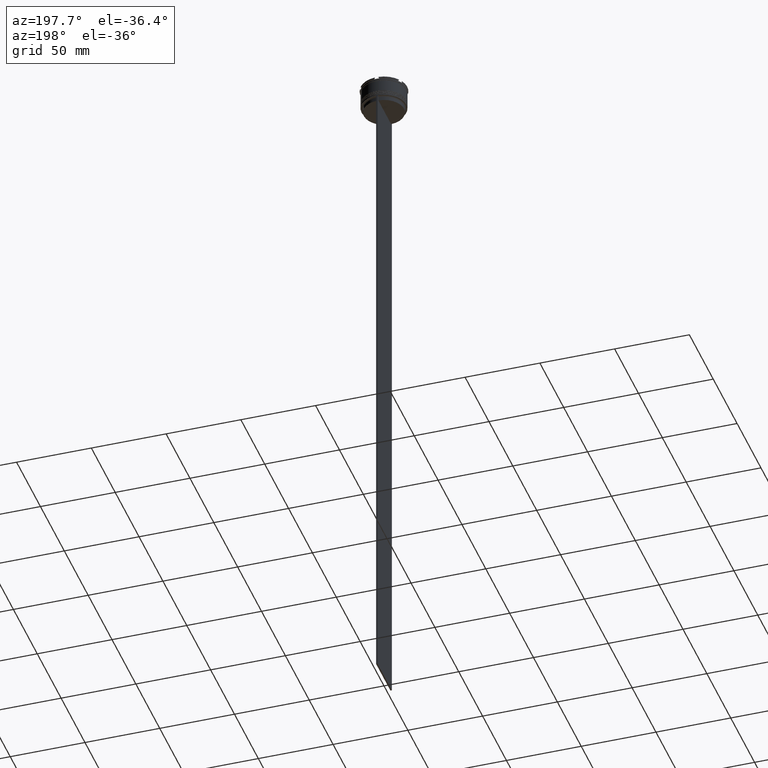
[diagram: clean part render]
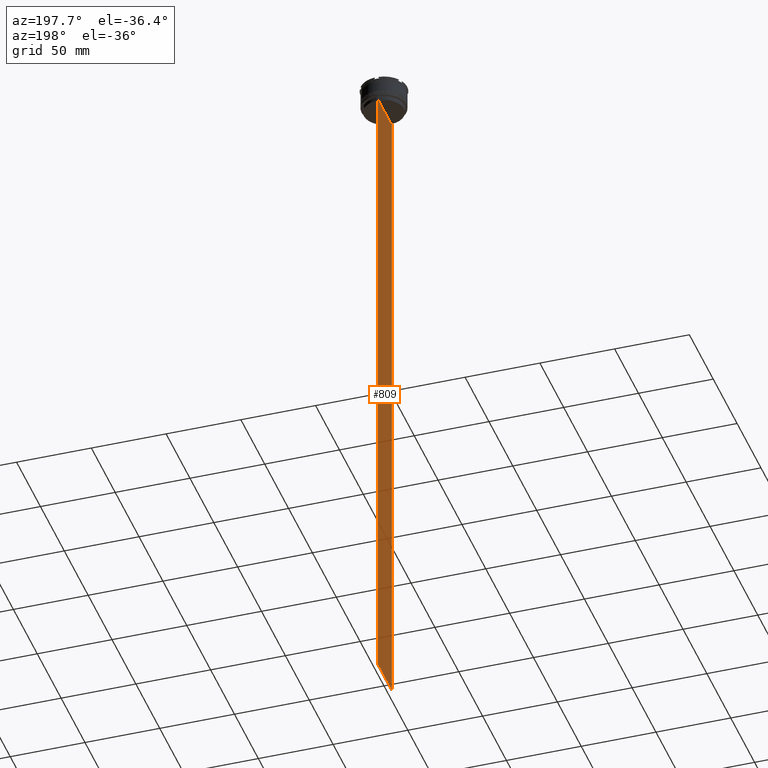
[diagram: same view with one face highlighted and labeled with its STEP entity id]
A machine part, auxiliary view. The second image highlights one B-rep face of the part: STEP entity #809.
In plain terms, the highlighted planar face has unit normal (-1, 0, 0).
Its self-contained STEP definition (entity closure, byte-faithful):
#12 = DIRECTION ( 'NONE',  ( -1.000000000000000000, 0.000000000000000000, 0.000000000000000000 ) ) ;
#69 = LINE ( 'NONE', #2297, #1254 ) ;
#139 = VERTEX_POINT ( 'NONE', #1400 ) ;
#181 = EDGE_CURVE ( 'NONE', #1824, #2716, #1738, .T. ) ;
#210 = VERTEX_POINT ( 'NONE', #2868 ) ;
#221 = VECTOR ( 'NONE', #2240, 1000.000000000000000 ) ;
#225 = VECTOR ( 'NONE', #2636, 1000.000000000000000 ) ;
#236 = EDGE_CURVE ( 'NONE', #1792, #1236, #2553, .T. ) ;
#252 = EDGE_CURVE ( 'NONE', #328, #139, #819, .T. ) ;
#306 = DIRECTION ( 'NONE',  ( 0.000000000000000000, 0.000000000000000000, -1.000000000000000000 ) ) ;
#328 = VERTEX_POINT ( 'NONE', #708 ) ;
#385 = CARTESIAN_POINT ( 'NONE',  ( -0.4999999999999998890, -15.00000000000000355, -464.0000000000000000 ) ) ;
#397 = EDGE_CURVE ( 'NONE', #1532, #210, #2225, .T. ) ;
#446 = DIRECTION ( 'NONE',  ( 0.000000000000000000, -1.000000000000000000, 0.000000000000000000 ) ) ;
#518 = LINE ( 'NONE', #903, #1212 ) ;
#525 = EDGE_CURVE ( 'NONE', #1260, #622, #1537, .T. ) ;
#576 = LINE ( 'NONE', #1899, #789 ) ;
#595 = DIRECTION ( 'NONE',  ( 0.000000000000000000, -1.000000000000000000, 0.000000000000000000 ) ) ;
#618 = DIRECTION ( 'NONE',  ( 0.000000000000000000, -1.000000000000000000, 0.000000000000000000 ) ) ;
#622 = VERTEX_POINT ( 'NONE', #1002 ) ;
#632 = CARTESIAN_POINT ( 'NONE',  ( -0.4999999999999998890, -13.72422766745777345, -14.16666868242426958 ) ) ;
#663 = EDGE_CURVE ( 'NONE', #2762, #782, #2118, .T. ) ;
#664 = CARTESIAN_POINT ( 'NONE',  ( -0.4999999999999998890, 13.72422766736833566, -14.16666868251365052 ) ) ;
#672 = ORIENTED_EDGE ( 'NONE', *, *, #1446, .F. ) ;
#708 = CARTESIAN_POINT ( 'NONE',  ( -0.4999999999999998890, -13.39066839257847263, -14.49999999999999822 ) ) ;
#736 = VECTOR ( 'NONE', #595, 1000.000000000000000 ) ;
#782 = VERTEX_POINT ( 'NONE', #2402 ) ;
#789 = VECTOR ( 'NONE', #306, 1000.000000000000000 ) ;
#809 = ADVANCED_FACE ( 'NONE', ( #1757 ), #2214, .T. ) ;
#819 = B_SPLINE_CURVE_WITH_KNOTS ( 'NONE', 3,
 ( #1327, #1553, #632, #2608 ),
 .UNSPECIFIED., .F., .F.,
 ( 4, 4 ),
 ( 0.06160226316123729867, 0.06231007364084071437 ),
 .UNSPECIFIED. ) ;
#850 = CARTESIAN_POINT ( 'NONE',  ( -0.4999999999999998890, 13.55744911232272543, -14.33333542444994002 ) ) ;
#896 = ORIENTED_EDGE ( 'NONE', *, *, #252, .F. ) ;
#903 = CARTESIAN_POINT ( 'NONE',  ( -0.4999999999999998890, 13.39066839257847263, 0.000000000000000000 ) ) ;
#906 = DIRECTION ( 'NONE',  ( 0.000000000000000000, 0.000000000000000000, 1.000000000000000000 ) ) ;
#935 = VECTOR ( 'NONE', #618, 1000.000000000000000 ) ;
#946 = EDGE_CURVE ( 'NONE', #2762, #622, #2005, .T. ) ;
#995 = CARTESIAN_POINT ( 'NONE',  ( -0.4999999999999998890, -15.00000000000000355, -14.00000000000000178 ) ) ;
#1002 = CARTESIAN_POINT ( 'NONE',  ( -0.4999999999999998890, 14.99999999999999645, -464.0000000000000000 ) ) ;
#1036 = ORIENTED_EDGE ( 'NONE', *, *, #236, .F. ) ;
#1153 = EDGE_LOOP ( 'NONE', ( #1036, #1364, #2760, #1334, #2210, #1583, #1856, #2722, #896, #672, #1587, #1674 ) ) ;
#1212 = VECTOR ( 'NONE', #2212, 1000.000000000000000 ) ;
#1222 = DIRECTION ( 'NONE',  ( 0.000000000000000000, 1.000000000000000000, 0.000000000000000000 ) ) ;
#1236 = VERTEX_POINT ( 'NONE', #2848 ) ;
#1254 = VECTOR ( 'NONE', #2532, 1000.000000000000000 ) ;
#1260 = VERTEX_POINT ( 'NONE', #385 ) ;
#1327 = CARTESIAN_POINT ( 'NONE',  ( -0.4999999999999998890, -13.39066839257847263, -14.49999999999999822 ) ) ;
#1334 = ORIENTED_EDGE ( 'NONE', *, *, #946, .T. ) ;
#1364 = ORIENTED_EDGE ( 'NONE', *, *, #2616, .F. ) ;
#1400 = CARTESIAN_POINT ( 'NONE',  ( -0.4999999999999998890, -13.89100428334828230, -14.00000000000000178 ) ) ;
#1430 = VECTOR ( 'NONE', #1993, 1000.000000000000000 ) ;
#1446 = EDGE_CURVE ( 'NONE', #210, #328, #69, .T. ) ;
#1449 = CARTESIAN_POINT ( 'NONE',  ( -0.4999999999999998890, -15.00000000000000355, -464.0000000000000000 ) ) ;
#1506 = EDGE_CURVE ( 'NONE', #2716, #1260, #576, .T. ) ;
#1532 = VERTEX_POINT ( 'NONE', #1938 ) ;
#1537 = LINE ( 'NONE', #1449, #2269 ) ;
#1542 = CARTESIAN_POINT ( 'NONE',  ( -0.4999999999999998890, 13.39066839257847263, -14.49999999999999822 ) ) ;
#1553 = CARTESIAN_POINT ( 'NONE',  ( -0.4999999999999998890, -13.55744911241550277, -14.33333542435722485 ) ) ;
#1583 = ORIENTED_EDGE ( 'NONE', *, *, #1506, .F. ) ;
#1587 = ORIENTED_EDGE ( 'NONE', *, *, #397, .F. ) ;
#1674 = ORIENTED_EDGE ( 'NONE', *, *, #2241, .F. ) ;
#1738 = LINE ( 'NONE', #1759, #1430 ) ;
#1757 = FACE_OUTER_BOUND ( 'NONE', #1153, .T. ) ;
#1759 = CARTESIAN_POINT ( 'NONE',  ( -0.4999999999999998890, -15.00000000000000355, -14.00000000000000178 ) ) ;
#1792 = VERTEX_POINT ( 'NONE', #1834 ) ;
#1824 = VERTEX_POINT ( 'NONE', #2294 ) ;
#1834 = CARTESIAN_POINT ( 'NONE',  ( -0.4999999999999998890, 13.89100428334828230, -14.00000000000000178 ) ) ;
#1856 = ORIENTED_EDGE ( 'NONE', *, *, #181, .F. ) ;
#1899 = CARTESIAN_POINT ( 'NONE',  ( -0.4999999999999998890, -15.00000000000000355, 16.01666203960726165 ) ) ;
#1917 = LINE ( 'NONE', #2818, #935 ) ;
#1938 = CARTESIAN_POINT ( 'NONE',  ( -0.4999999999999998890, 13.39066839257847086, -17.00000000000000000 ) ) ;
#1993 = DIRECTION ( 'NONE',  ( 0.000000000000000000, -1.000000000000000000, 0.000000000000000000 ) ) ;
#2005 = LINE ( 'NONE', #2018, #225 ) ;
#2011 = LINE ( 'NONE', #2688, #2791 ) ;
#2018 = CARTESIAN_POINT ( 'NONE',  ( -0.4999999999999998890, 14.99999999999999645, 16.01666203960726165 ) ) ;
#2118 = LINE ( 'NONE', #2828, #736 ) ;
#2210 = ORIENTED_EDGE ( 'NONE', *, *, #525, .F. ) ;
#2212 = DIRECTION ( 'NONE',  ( 0.000000000000000000, 0.000000000000000000, -1.000000000000000000 ) ) ;
#2214 = PLANE ( 'NONE',  #2551 ) ;
#2225 = LINE ( 'NONE', #2254, #221 ) ;
#2240 = DIRECTION ( 'NONE',  ( 0.000000000000000000, -1.000000000000000000, 0.000000000000000000 ) ) ;
#2241 = EDGE_CURVE ( 'NONE', #1236, #1532, #518, .T. ) ;
#2254 = CARTESIAN_POINT ( 'NONE',  ( -0.4999999999999998890, 13.40000000000000391, -17.00000000000000000 ) ) ;
#2269 = VECTOR ( 'NONE', #1222, 1000.000000000000000 ) ;
#2294 = CARTESIAN_POINT ( 'NONE',  ( -0.4999999999999998890, -14.89160837518903513, -14.00000000000000178 ) ) ;
#2297 = CARTESIAN_POINT ( 'NONE',  ( -0.4999999999999998890, -13.39066839257847263, 0.000000000000000000 ) ) ;
#2298 = CARTESIAN_POINT ( 'NONE',  ( -0.4999999999999998890, 14.99999999999999645, -14.00000000000000178 ) ) ;
#2402 = CARTESIAN_POINT ( 'NONE',  ( -0.4999999999999998890, 14.89160837518903513, -14.00000000000000178 ) ) ;
#2488 = EDGE_CURVE ( 'NONE', #139, #1824, #1917, .T. ) ;
#2532 = DIRECTION ( 'NONE',  ( -0.000000000000000000, -0.000000000000000000, 1.000000000000000000 ) ) ;
#2551 = AXIS2_PLACEMENT_3D ( 'NONE', #2853, #12, #906 ) ;
#2553 = B_SPLINE_CURVE_WITH_KNOTS ( 'NONE', 3,
 ( #2655, #664, #850, #1542 ),
 .UNSPECIFIED., .F., .F.,
 ( 4, 4 ),
 ( 0.02359665025569773755, 0.02430399458637444096 ),
 .UNSPECIFIED. ) ;
#2608 = CARTESIAN_POINT ( 'NONE',  ( -0.4999999999999998890, -13.89100428334828230, -14.00000000000000178 ) ) ;
#2616 = EDGE_CURVE ( 'NONE', #782, #1792, #2011, .T. ) ;
#2636 = DIRECTION ( 'NONE',  ( 0.000000000000000000, 0.000000000000000000, -1.000000000000000000 ) ) ;
#2655 = CARTESIAN_POINT ( 'NONE',  ( -0.4999999999999998890, 13.89100428334828230, -14.00000000000000178 ) ) ;
#2688 = CARTESIAN_POINT ( 'NONE',  ( -0.4999999999999998890, -15.00000000000000355, -14.00000000000000178 ) ) ;
#2716 = VERTEX_POINT ( 'NONE', #995 ) ;
#2722 = ORIENTED_EDGE ( 'NONE', *, *, #2488, .F. ) ;
#2760 = ORIENTED_EDGE ( 'NONE', *, *, #663, .F. ) ;
#2762 = VERTEX_POINT ( 'NONE', #2298 ) ;
#2791 = VECTOR ( 'NONE', #446, 1000.000000000000000 ) ;
#2818 = CARTESIAN_POINT ( 'NONE',  ( -0.4999999999999998890, -15.00000000000000355, -14.00000000000000178 ) ) ;
#2828 = CARTESIAN_POINT ( 'NONE',  ( -0.4999999999999998890, -15.00000000000000355, -14.00000000000000178 ) ) ;
#2848 = CARTESIAN_POINT ( 'NONE',  ( -0.4999999999999998890, 13.39066839257847263, -14.49999999999999822 ) ) ;
#2853 = CARTESIAN_POINT ( 'NONE',  ( -0.4999999999999998890, -15.00000000000000355, 16.01666203960726165 ) ) ;
#2868 = CARTESIAN_POINT ( 'NONE',  ( -0.4999999999999998890, -13.39066839257847086, -17.00000000000000000 ) ) ;